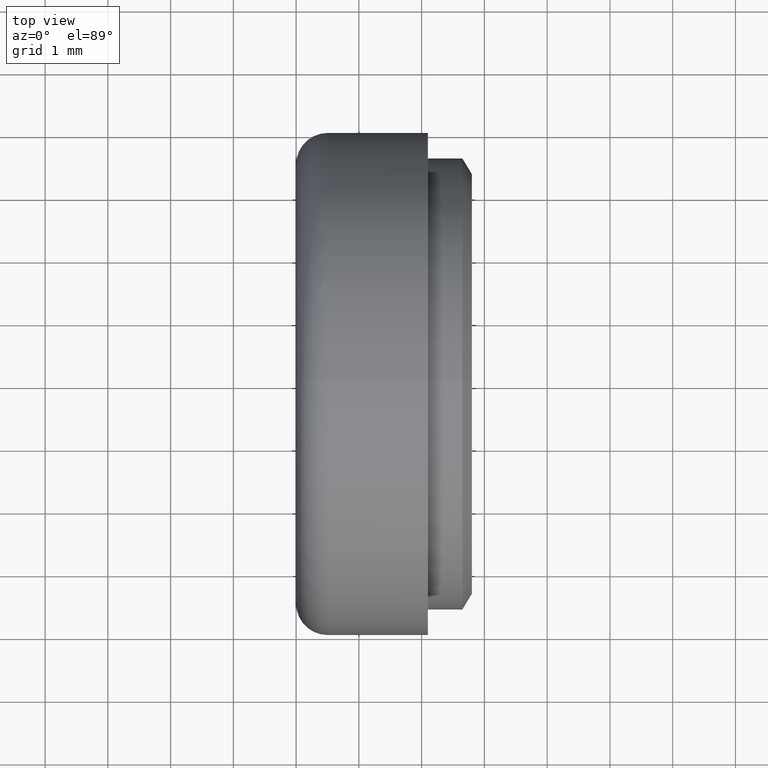
[diagram: clean part render]
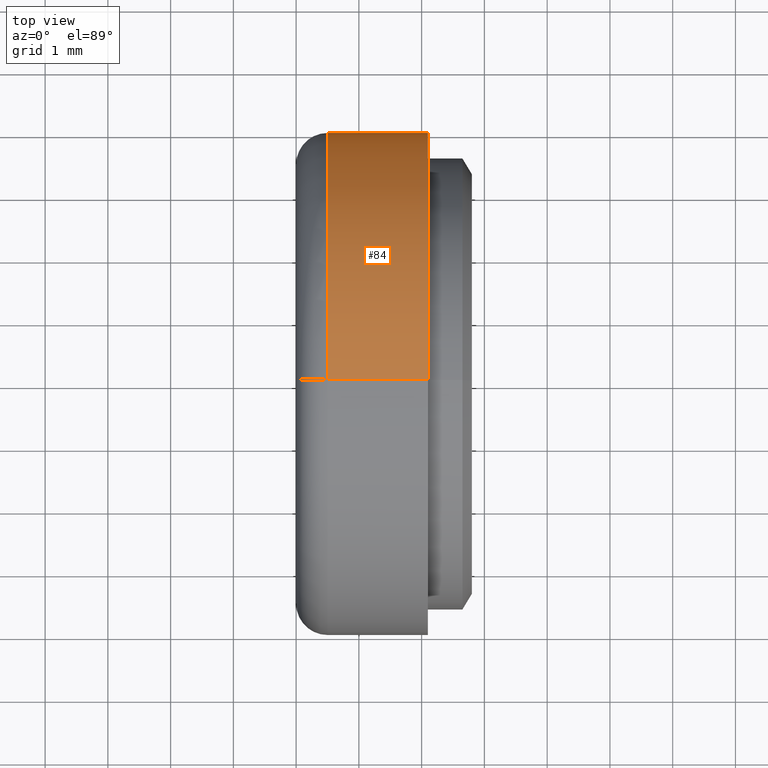
[diagram: same view with one face highlighted and labeled with its STEP entity id]
A machine part, top view. The second image highlights one B-rep face of the part: STEP entity #84.
In plain terms, the highlighted cylindrical surface (partial cylindrical patch) has radius 4 mm, axis along (-1, -0, -0).
Its self-contained STEP definition (entity closure, byte-faithful):
#10 = CARTESIAN_POINT ( 'NONE',  ( 2.100000000000000100, 0.0000000000000000000, 4.000000000000000000 ) ) ;
#21 = CIRCLE ( 'NONE', #273, 4.000000000000000000 ) ;
#51 = FACE_OUTER_BOUND ( 'NONE', #190, .T. ) ;
#62 = DIRECTION ( 'NONE',  ( 0.0000000000000000000, 0.0000000000000000000, -1.000000000000000000 ) ) ;
#71 = CARTESIAN_POINT ( 'NONE',  ( 2.100000000000000100, 0.0000000000000000000, 0.0000000000000000000 ) ) ;
#76 = ORIENTED_EDGE ( 'NONE', *, *, #78, .F. ) ;
#78 = EDGE_CURVE ( 'NONE', #311, #279, #134, .T. ) ;
#82 = VECTOR ( 'NONE', #397, 1000.000000000000000 ) ;
#84 = ADVANCED_FACE ( 'NONE', ( #51 ), #396, .T. ) ;
#134 = LINE ( 'NONE', #314, #399 ) ;
#177 = AXIS2_PLACEMENT_3D ( 'NONE', #403, #547, #62 ) ;
#190 = EDGE_LOOP ( 'NONE', ( #586, #213, #336, #76 ) ) ;
#208 = LINE ( 'NONE', #385, #82 ) ;
#213 = ORIENTED_EDGE ( 'NONE', *, *, #309, .T. ) ;
#243 = DIRECTION ( 'NONE',  ( 0.0000000000000000000, 0.0000000000000000000, 1.000000000000000000 ) ) ;
#273 = AXIS2_PLACEMENT_3D ( 'NONE', #71, #291, #693 ) ;
#279 = VERTEX_POINT ( 'NONE', #480 ) ;
#284 = CIRCLE ( 'NONE', #177, 4.000000000000000000 ) ;
#291 = DIRECTION ( 'NONE',  ( 1.000000000000000000, 0.0000000000000000000, 0.0000000000000000000 ) ) ;
#309 = EDGE_CURVE ( 'NONE', #626, #418, #208, .T. ) ;
#311 = VERTEX_POINT ( 'NONE', #10 ) ;
#314 = CARTESIAN_POINT ( 'NONE',  ( 2.100000000000000100, 0.0000000000000000000, 4.000000000000000000 ) ) ;
#336 = ORIENTED_EDGE ( 'NONE', *, *, #601, .T. ) ;
#353 = CARTESIAN_POINT ( 'NONE',  ( 2.100000000000000100, 0.0000000000000000000, 0.0000000000000000000 ) ) ;
#383 = EDGE_CURVE ( 'NONE', #626, #311, #21, .T. ) ;
#385 = CARTESIAN_POINT ( 'NONE',  ( 2.100000000000000100, 4.898587196589412800E-016, -4.000000000000000000 ) ) ;
#396 = CYLINDRICAL_SURFACE ( 'NONE', #646, 4.000000000000000000 ) ;
#397 = DIRECTION ( 'NONE',  ( -1.000000000000000000, -0.0000000000000000000, -0.0000000000000000000 ) ) ;
#399 = VECTOR ( 'NONE', #522, 1000.000000000000000 ) ;
#403 = CARTESIAN_POINT ( 'NONE',  ( 0.5000000000000000000, 0.0000000000000000000, 0.0000000000000000000 ) ) ;
#408 = DIRECTION ( 'NONE',  ( -1.000000000000000000, -0.0000000000000000000, -0.0000000000000000000 ) ) ;
#418 = VERTEX_POINT ( 'NONE', #502 ) ;
#480 = CARTESIAN_POINT ( 'NONE',  ( 0.5000000000000000000, 0.0000000000000000000, 4.000000000000000000 ) ) ;
#502 = CARTESIAN_POINT ( 'NONE',  ( 0.5000000000000000000, 4.898587196589412800E-016, -4.000000000000000000 ) ) ;
#522 = DIRECTION ( 'NONE',  ( -1.000000000000000000, -0.0000000000000000000, -0.0000000000000000000 ) ) ;
#547 = DIRECTION ( 'NONE',  ( 1.000000000000000000, 0.0000000000000000000, 0.0000000000000000000 ) ) ;
#586 = ORIENTED_EDGE ( 'NONE', *, *, #383, .F. ) ;
#601 = EDGE_CURVE ( 'NONE', #418, #279, #284, .T. ) ;
#606 = CARTESIAN_POINT ( 'NONE',  ( 2.100000000000000100, 4.898587196589412800E-016, -4.000000000000000000 ) ) ;
#626 = VERTEX_POINT ( 'NONE', #606 ) ;
#646 = AXIS2_PLACEMENT_3D ( 'NONE', #353, #408, #243 ) ;
#693 = DIRECTION ( 'NONE',  ( 0.0000000000000000000, 0.0000000000000000000, -1.000000000000000000 ) ) ;